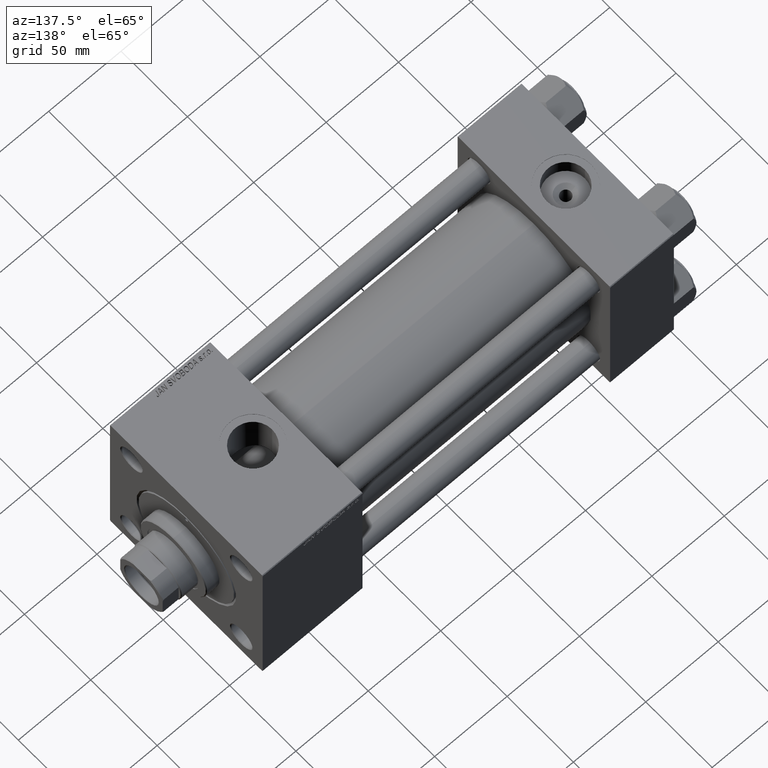
[diagram: clean part render]
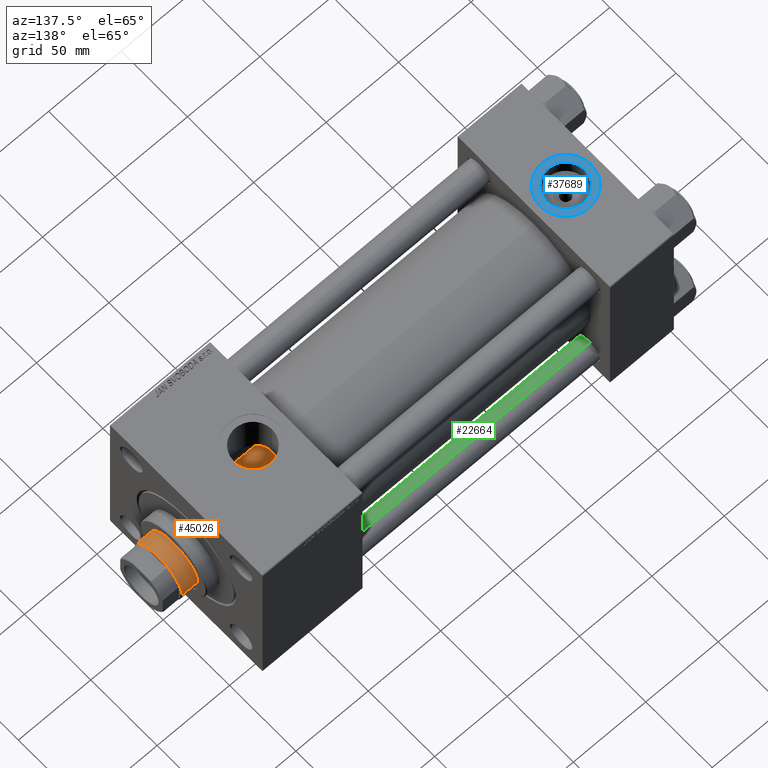
[diagram: same view with three faces highlighted in distinct colors, each labeled with its STEP entity id]
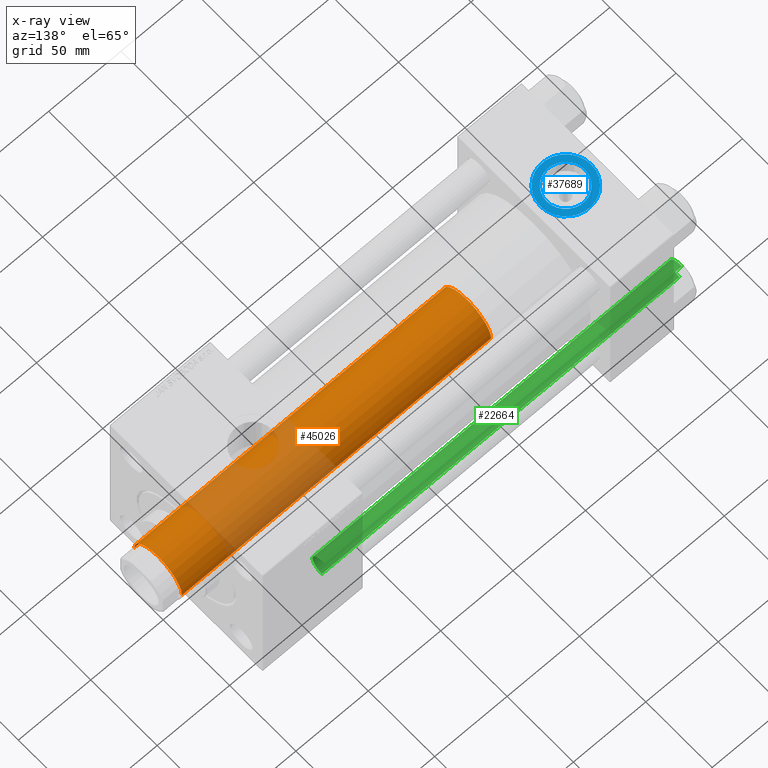
[diagram: x-ray of the same camera — body ghosted, the three highlighted faces saturated]
A machine part, auxiliary view with three faces highlighted in distinct colors.
The next image is the same camera in x-ray (body ghosted, the three faces saturated) — at least one of them is partly hidden behind the body in this view.
Their STEP definitions:

[orange] entity #45026 — the highlighted cylindrical surface (edge-blend (fillet) strip) has radius 18 mm, axis along (-1, 0, 0).
#930 = VERTEX_POINT ( 'NONE', #39279 ) ;
#2732 = DIRECTION ( 'NONE',  ( 1.000000000000000000, 0.000000000000000000, 0.000000000000000000 ) ) ;
#3016 = ORIENTED_EDGE ( 'NONE', *, *, #28188, .T. ) ;
#5156 = CYLINDRICAL_SURFACE ( 'NONE', #18279, 18.00000000000000000 ) ;
#6332 = CARTESIAN_POINT ( 'NONE',  ( 0.000000000000000000, 0.000000000000000000, 46.00000000000000000 ) ) ;
#7585 = DIRECTION ( 'NONE',  ( 0.000000000000000000, 0.000000000000000000, -1.000000000000000000 ) ) ;
#7642 = EDGE_CURVE ( 'NONE', #930, #36604, #43607, .T. ) ;
#13616 = CARTESIAN_POINT ( 'NONE',  ( 0.000000000000000000, 0.000000000000000000, 260.0000000000000000 ) ) ;
#14210 = VECTOR ( 'NONE', #16864, 1000.000000000000000 ) ;
#14518 = AXIS2_PLACEMENT_3D ( 'NONE', #35091, #7585, #23262 ) ;
#15387 = DIRECTION ( 'NONE',  ( -0.000000000000000000, -0.000000000000000000, -1.000000000000000000 ) ) ;
#16864 = DIRECTION ( 'NONE',  ( -0.000000000000000000, -0.000000000000000000, -1.000000000000000000 ) ) ;
#17621 = ORIENTED_EDGE ( 'NONE', *, *, #7642, .F. ) ;
#18279 = AXIS2_PLACEMENT_3D ( 'NONE', #13616, #40131, #28551 ) ;
#19253 = EDGE_LOOP ( 'NONE', ( #17621, #3016, #27612, #45856 ) ) ;
#20410 = CARTESIAN_POINT ( 'NONE',  ( 18.00000000000000000, 2.204364238465235428E-15, 46.00000000000000000 ) ) ;
#21820 = CIRCLE ( 'NONE', #44841, 18.00000000000000000 ) ;
#22696 = CARTESIAN_POINT ( 'NONE',  ( -18.00000000000000000, 0.000000000000000000, 259.4999999999999432 ) ) ;
#23262 = DIRECTION ( 'NONE',  ( 1.000000000000000000, 0.000000000000000000, 0.000000000000000000 ) ) ;
#24579 = CARTESIAN_POINT ( 'NONE',  ( 18.00000000000000000, 2.204364238465235428E-15, 260.0000000000000000 ) ) ;
#24692 = FACE_OUTER_BOUND ( 'NONE', #19253, .T. ) ;
#25935 = EDGE_CURVE ( 'NONE', #39069, #36604, #21820, .T. ) ;
#26324 = VERTEX_POINT ( 'NONE', #22696 ) ;
#27612 = ORIENTED_EDGE ( 'NONE', *, *, #49612, .T. ) ;
#28188 = EDGE_CURVE ( 'NONE', #930, #26324, #35883, .T. ) ;
#28551 = DIRECTION ( 'NONE',  ( -1.000000000000000000, 0.000000000000000000, 0.000000000000000000 ) ) ;
#35091 = CARTESIAN_POINT ( 'NONE',  ( 0.000000000000000000, 0.000000000000000000, 259.4999999999999432 ) ) ;
#35883 = CIRCLE ( 'NONE', #14518, 18.00000000000000000 ) ;
#36604 = VERTEX_POINT ( 'NONE', #20410 ) ;
#37496 = CARTESIAN_POINT ( 'NONE',  ( -18.00000000000000000, 0.000000000000000000, 46.00000000000000000 ) ) ;
#39069 = VERTEX_POINT ( 'NONE', #37496 ) ;
#39279 = CARTESIAN_POINT ( 'NONE',  ( 18.00000000000000000, 2.204364238465235428E-15, 259.4999999999999432 ) ) ;
#40131 = DIRECTION ( 'NONE',  ( -0.000000000000000000, -0.000000000000000000, -1.000000000000000000 ) ) ;
#41804 = DIRECTION ( 'NONE',  ( 0.000000000000000000, 0.000000000000000000, 1.000000000000000000 ) ) ;
#42103 = VECTOR ( 'NONE', #15387, 1000.000000000000000 ) ;
#43401 = LINE ( 'NONE', #50843, #42103 ) ;
#43607 = LINE ( 'NONE', #24579, #14210 ) ;
#44841 = AXIS2_PLACEMENT_3D ( 'NONE', #6332, #41804, #2732 ) ;
#45026 = ADVANCED_FACE ( 'NONE', ( #24692 ), #5156, .T. ) ;
#45856 = ORIENTED_EDGE ( 'NONE', *, *, #25935, .T. ) ;
#49612 = EDGE_CURVE ( 'NONE', #26324, #39069, #43401, .T. ) ;
#50843 = CARTESIAN_POINT ( 'NONE',  ( -18.00000000000000000, 0.000000000000000000, 260.0000000000000000 ) ) ;

[blue] entity #37689 — the highlighted planar face has unit normal (0, 0, 1).
#63 = FACE_OUTER_BOUND ( 'NONE', #8686, .T. ) ;
#2963 = CARTESIAN_POINT ( 'NONE',  ( 4.499999999999997335, -6.530485481376167224E-15, 57.30000000000000426 ) ) ;
#4008 = DIRECTION ( 'NONE',  ( 1.000000000000000000, 0.000000000000000000, 0.000000000000000000 ) ) ;
#4397 = AXIS2_PLACEMENT_3D ( 'NONE', #26168, #34382, #41858 ) ;
#7264 = CARTESIAN_POINT ( 'NONE',  ( 22.00000000000000000, -8.673617379884035472E-15, 57.30000000000000426 ) ) ;
#8686 = EDGE_LOOP ( 'NONE', ( #46179, #49872 ) ) ;
#8749 = EDGE_CURVE ( 'NONE', #26079, #37260, #47100, .T. ) ;
#9129 = CARTESIAN_POINT ( 'NONE',  ( 39.50000000000000000, -8.673617379884035472E-15, 57.30000000000000426 ) ) ;
#11142 = DIRECTION ( 'NONE',  ( 0.000000000000000000, 0.000000000000000000, 1.000000000000000000 ) ) ;
#11827 = CARTESIAN_POINT ( 'NONE',  ( 35.21999999999999886, -8.673617379884035472E-15, 57.30000000000000426 ) ) ;
#12741 = EDGE_CURVE ( 'NONE', #30696, #23059, #27552, .T. ) ;
#17331 = EDGE_LOOP ( 'NONE', ( #34758, #37422 ) ) ;
#19594 = AXIS2_PLACEMENT_3D ( 'NONE', #31252, #26892, #4008 ) ;
#20361 = CARTESIAN_POINT ( 'NONE',  ( 22.00000000000000000, -8.673617379884035472E-15, 57.30000000000000426 ) ) ;
#23059 = VERTEX_POINT ( 'NONE', #29570 ) ;
#24213 = DIRECTION ( 'NONE',  ( 0.000000000000000000, 0.000000000000000000, 1.000000000000000000 ) ) ;
#24543 = CIRCLE ( 'NONE', #19594, 17.50000000000000000 ) ;
#26079 = VERTEX_POINT ( 'NONE', #9129 ) ;
#26168 = CARTESIAN_POINT ( 'NONE',  ( 22.00000000000000000, -8.673617379884035472E-15, 57.30000000000000426 ) ) ;
#26803 = DIRECTION ( 'NONE',  ( 1.000000000000000000, 0.000000000000000000, -0.000000000000000000 ) ) ;
#26892 = DIRECTION ( 'NONE',  ( 0.000000000000000000, 0.000000000000000000, 1.000000000000000000 ) ) ;
#27552 = CIRCLE ( 'NONE', #39020, 13.22000000000000242 ) ;
#28641 = EDGE_CURVE ( 'NONE', #23059, #30696, #47365, .T. ) ;
#29570 = CARTESIAN_POINT ( 'NONE',  ( 8.779999999999994031, -7.054634311411234321E-15, 57.30000000000000426 ) ) ;
#30696 = VERTEX_POINT ( 'NONE', #11827 ) ;
#31163 = DIRECTION ( 'NONE',  ( 0.000000000000000000, 0.000000000000000000, 1.000000000000000000 ) ) ;
#31252 = CARTESIAN_POINT ( 'NONE',  ( 22.00000000000000000, -8.673617379884035472E-15, 57.30000000000000426 ) ) ;
#31684 = DIRECTION ( 'NONE',  ( 1.000000000000000000, 0.000000000000000000, 0.000000000000000000 ) ) ;
#32791 = AXIS2_PLACEMENT_3D ( 'NONE', #7264, #31163, #26803 ) ;
#32981 = EDGE_CURVE ( 'NONE', #37260, #26079, #24543, .T. ) ;
#34382 = DIRECTION ( 'NONE',  ( 0.000000000000000000, 0.000000000000000000, 1.000000000000000000 ) ) ;
#34758 = ORIENTED_EDGE ( 'NONE', *, *, #12741, .F. ) ;
#35278 = FACE_BOUND ( 'NONE', #17331, .T. ) ;
#37260 = VERTEX_POINT ( 'NONE', #2963 ) ;
#37422 = ORIENTED_EDGE ( 'NONE', *, *, #28641, .F. ) ;
#37689 = ADVANCED_FACE ( 'NONE', ( #35278, #63 ), #50679, .T. ) ;
#39020 = AXIS2_PLACEMENT_3D ( 'NONE', #39159, #11142, #31684 ) ;
#39159 = CARTESIAN_POINT ( 'NONE',  ( 22.00000000000000000, -8.673617379884035472E-15, 57.30000000000000426 ) ) ;
#41858 = DIRECTION ( 'NONE',  ( 1.000000000000000000, 0.000000000000000000, 0.000000000000000000 ) ) ;
#43246 = DIRECTION ( 'NONE',  ( 1.000000000000000000, 0.000000000000000000, 0.000000000000000000 ) ) ;
#46179 = ORIENTED_EDGE ( 'NONE', *, *, #8749, .T. ) ;
#46557 = AXIS2_PLACEMENT_3D ( 'NONE', #20361, #24213, #43246 ) ;
#47100 = CIRCLE ( 'NONE', #4397, 17.50000000000000000 ) ;
#47365 = CIRCLE ( 'NONE', #46557, 13.22000000000000242 ) ;
#49872 = ORIENTED_EDGE ( 'NONE', *, *, #32981, .T. ) ;
#50679 = PLANE ( 'NONE',  #32791 ) ;

[green] entity #22664 — the highlighted cylindrical surface (edge-blend (fillet) strip) has radius 8 mm, axis along (1, -0, 0).
#3621 = DIRECTION ( 'NONE',  ( -0.000000000000000000, -0.000000000000000000, 1.000000000000000000 ) ) ;
#6233 = DIRECTION ( 'NONE',  ( 1.000000000000000000, 0.000000000000000000, 0.000000000000000000 ) ) ;
#6943 = EDGE_CURVE ( 'NONE', #43915, #12356, #20083, .T. ) ;
#6962 = DIRECTION ( 'NONE',  ( 1.000000000000000000, 0.000000000000000000, 0.000000000000000000 ) ) ;
#9994 = VECTOR ( 'NONE', #30350, 1000.000000000000000 ) ;
#10310 = CARTESIAN_POINT ( 'NONE',  ( -8.000000000000000000, 0.000000000000000000, 0.4999999999999726885 ) ) ;
#10685 = CARTESIAN_POINT ( 'NONE',  ( 8.000000000000000000, 9.797174393178825657E-16, 0.4999999999999726885 ) ) ;
#10794 = EDGE_LOOP ( 'NONE', ( #19728, #41634, #36657, #26339 ) ) ;
#12356 = VERTEX_POINT ( 'NONE', #10685 ) ;
#12955 = VERTEX_POINT ( 'NONE', #10310 ) ;
#13379 = VECTOR ( 'NONE', #47578, 1000.000000000000000 ) ;
#14670 = CARTESIAN_POINT ( 'NONE',  ( -8.000000000000000000, 0.000000000000000000, 248.0000000000000000 ) ) ;
#14950 = DIRECTION ( 'NONE',  ( 0.000000000000000000, 0.000000000000000000, -1.000000000000000000 ) ) ;
#16217 = CARTESIAN_POINT ( 'NONE',  ( 8.000000000000000000, 9.797174393178825657E-16, 248.0000000000000000 ) ) ;
#16282 = FACE_OUTER_BOUND ( 'NONE', #10794, .T. ) ;
#18778 = CARTESIAN_POINT ( 'NONE',  ( 0.000000000000000000, 0.000000000000000000, 0.4999999999999726885 ) ) ;
#19728 = ORIENTED_EDGE ( 'NONE', *, *, #6943, .F. ) ;
#20083 = LINE ( 'NONE', #16217, #13379 ) ;
#20952 = CARTESIAN_POINT ( 'NONE',  ( -8.000000000000000000, 0.000000000000000000, 247.5000000000000284 ) ) ;
#22664 = ADVANCED_FACE ( 'NONE', ( #16282 ), #48151, .T. ) ;
#24258 = DIRECTION ( 'NONE',  ( -1.000000000000000000, 0.000000000000000000, 0.000000000000000000 ) ) ;
#24618 = CARTESIAN_POINT ( 'NONE',  ( 8.000000000000000000, 9.797174393178825657E-16, 247.5000000000000284 ) ) ;
#26339 = ORIENTED_EDGE ( 'NONE', *, *, #42625, .T. ) ;
#30350 = DIRECTION ( 'NONE',  ( -0.000000000000000000, -0.000000000000000000, -1.000000000000000000 ) ) ;
#30508 = CIRCLE ( 'NONE', #45291, 8.000000000000000000 ) ;
#33329 = EDGE_CURVE ( 'NONE', #43915, #46048, #34395, .T. ) ;
#34395 = CIRCLE ( 'NONE', #39343, 8.000000000000000000 ) ;
#36657 = ORIENTED_EDGE ( 'NONE', *, *, #42682, .T. ) ;
#36784 = AXIS2_PLACEMENT_3D ( 'NONE', #47642, #44304, #24258 ) ;
#38604 = CARTESIAN_POINT ( 'NONE',  ( 0.000000000000000000, 0.000000000000000000, 247.5000000000000284 ) ) ;
#39343 = AXIS2_PLACEMENT_3D ( 'NONE', #38604, #14950, #6233 ) ;
#41634 = ORIENTED_EDGE ( 'NONE', *, *, #33329, .T. ) ;
#42625 = EDGE_CURVE ( 'NONE', #12955, #12356, #30508, .T. ) ;
#42682 = EDGE_CURVE ( 'NONE', #46048, #12955, #42693, .T. ) ;
#42693 = LINE ( 'NONE', #14670, #9994 ) ;
#43915 = VERTEX_POINT ( 'NONE', #24618 ) ;
#44304 = DIRECTION ( 'NONE',  ( -0.000000000000000000, -0.000000000000000000, -1.000000000000000000 ) ) ;
#45291 = AXIS2_PLACEMENT_3D ( 'NONE', #18778, #3621, #6962 ) ;
#46048 = VERTEX_POINT ( 'NONE', #20952 ) ;
#47578 = DIRECTION ( 'NONE',  ( -0.000000000000000000, -0.000000000000000000, -1.000000000000000000 ) ) ;
#47642 = CARTESIAN_POINT ( 'NONE',  ( 0.000000000000000000, 0.000000000000000000, 248.0000000000000000 ) ) ;
#48151 = CYLINDRICAL_SURFACE ( 'NONE', #36784, 8.000000000000000000 ) ;